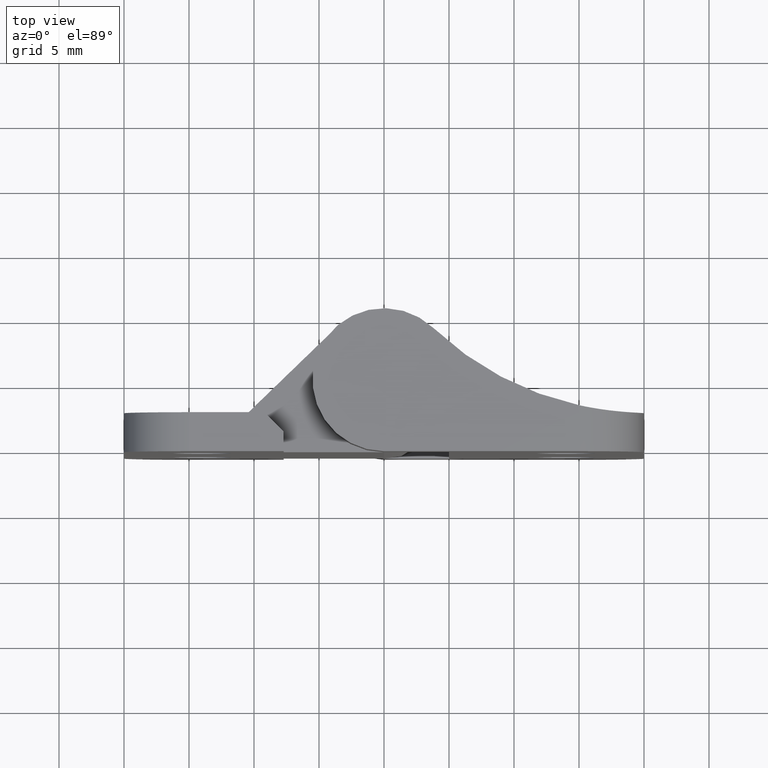
[diagram: clean part render]
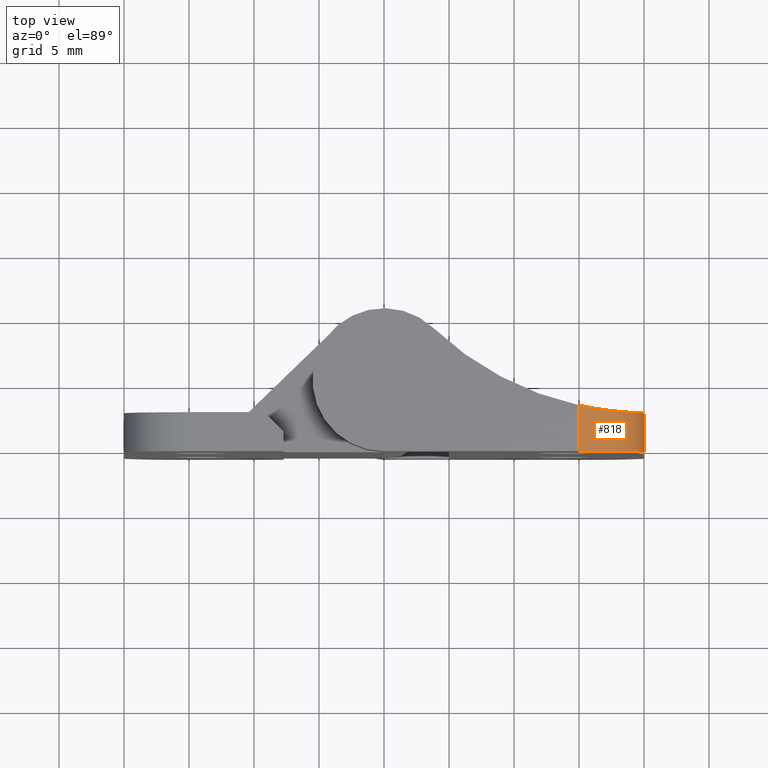
[diagram: same view with one face highlighted and labeled with its STEP entity id]
A machine part, top view. The second image highlights one B-rep face of the part: STEP entity #818.
In plain terms, the highlighted cylindrical surface (partial cylindrical patch) has radius 5 mm, axis along (0, 1, 0).
Its self-contained STEP definition (entity closure, byte-faithful):
#23=B_SPLINE_CURVE_WITH_KNOTS('',3,(#1358,#1359,#1360,#1361,#1362,#1363,
#1364,#1365,#1366,#1367),.UNSPECIFIED.,.F.,.F.,(4,2,2,2,4),(-1.53072872255725,
-1.34232824410136,-1.15392776564547,-0.963755514528929,-0.773583263412392),
 .UNSPECIFIED.);
#108=LINE('',#1337,#181);
#115=LINE('',#1371,#188);
#181=VECTOR('',#1090,3.53807499358993);
#188=VECTOR('',#1115,3.);
#266=FACE_OUTER_BOUND('',#325,.T.);
#325=EDGE_LOOP('',(#726,#727,#728,#729));
#364=CIRCLE('',#899,5.);
#425=VERTEX_POINT('',#1335);
#426=VERTEX_POINT('',#1336);
#429=VERTEX_POINT('',#1344);
#434=VERTEX_POINT('',#1369);
#523=EDGE_CURVE('',#425,#426,#108,.T.);
#534=EDGE_CURVE('',#429,#425,#23,.T.);
#535=EDGE_CURVE('',#426,#434,#364,.T.);
#536=EDGE_CURVE('',#434,#429,#115,.T.);
#726=ORIENTED_EDGE('',*,*,#534,.T.);
#727=ORIENTED_EDGE('',*,*,#523,.T.);
#728=ORIENTED_EDGE('',*,*,#535,.T.);
#729=ORIENTED_EDGE('',*,*,#536,.T.);
#778=CYLINDRICAL_SURFACE('',#898,5.);
#818=ADVANCED_FACE('',(#266),#778,.T.);
#898=AXIS2_PLACEMENT_3D('',#1368,#1111,#1112);
#899=AXIS2_PLACEMENT_3D('',#1370,#1113,#1114);
#1090=DIRECTION('',(0.,-1.,0.));
#1111=DIRECTION('center_axis',(0.,1.,0.));
#1112=DIRECTION('ref_axis',(0.707106781186548,0.,0.707106781186548));
#1113=DIRECTION('center_axis',(0.,1.,0.));
#1114=DIRECTION('ref_axis',(0.707106781186548,0.,0.707106781186548));
#1115=DIRECTION('',(0.,1.,0.));
#1335=CARTESIAN_POINT('',(15.,-1.96192500641007,19.));
#1336=CARTESIAN_POINT('',(15.,-5.5,19.));
#1337=CARTESIAN_POINT('',(15.,-3.80054138416684,19.));
#1344=CARTESIAN_POINT('',(20.,-2.5,14.));
#1358=CARTESIAN_POINT('Ctrl Pts',(20.,-2.5,14.));
#1359=CARTESIAN_POINT('Ctrl Pts',(20.,-2.5,14.628001594853));
#1360=CARTESIAN_POINT('Ctrl Pts',(19.8744444246523,-2.5010506880201,15.2978256387486));
#1361=CARTESIAN_POINT('Ctrl Pts',(19.364030502035,-2.49277954066755,16.5297821035586));
#1362=CARTESIAN_POINT('Ctrl Pts',(18.9791659127393,-2.48202449560006,17.0919018991262));
#1363=CARTESIAN_POINT('Ctrl Pts',(18.0877298552572,-2.42636406165069,17.9833379566082));
#1364=CARTESIAN_POINT('Ctrl Pts',(17.5208558572984,-2.37715661344602,18.3692949613753));
#1365=CARTESIAN_POINT('Ctrl Pts',(16.2865492198939,-2.21309739017598,18.8775243067932));
#1366=CARTESIAN_POINT('Ctrl Pts',(15.6193930451685,-2.09679894337216,19.));
#1367=CARTESIAN_POINT('Ctrl Pts',(15.,-1.96192500641007,19.));
#1368=CARTESIAN_POINT('Origin',(15.,-3.80054138416684,14.));
#1369=CARTESIAN_POINT('',(20.,-5.5,14.));
#1370=CARTESIAN_POINT('Origin',(15.,-5.5,14.));
#1371=CARTESIAN_POINT('',(20.,-3.80054138416684,14.));